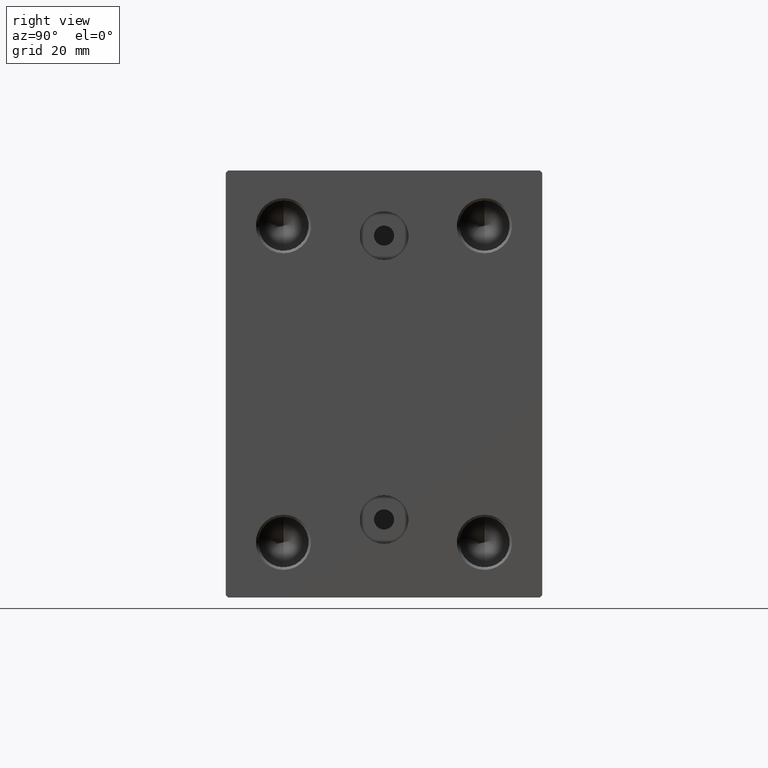
[diagram: clean part render]
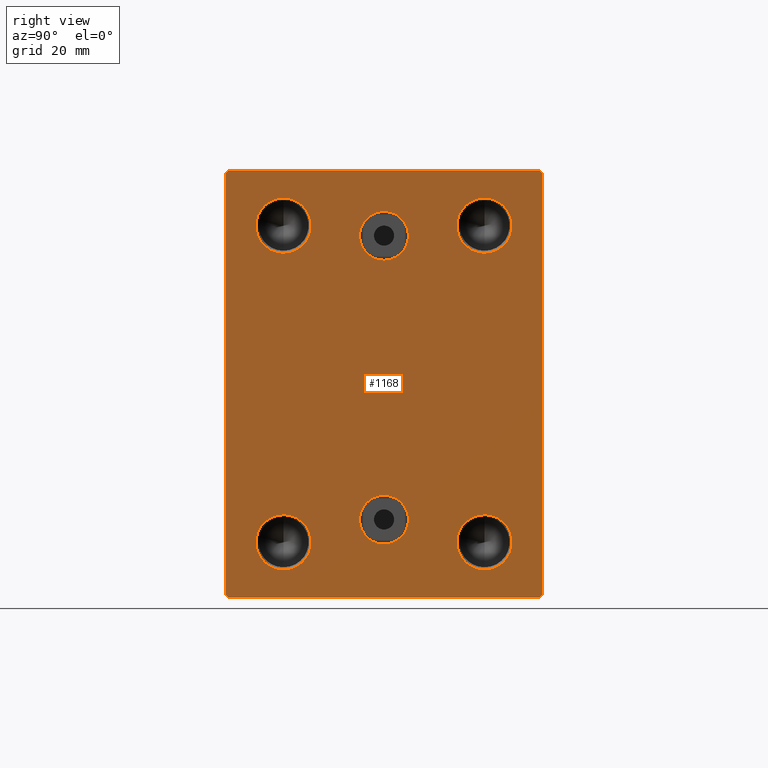
[diagram: same view with one face highlighted and labeled with its STEP entity id]
A machine part, right view. The second image highlights one B-rep face of the part: STEP entity #1168.
In plain terms, the highlighted planar face has unit normal (1, 0, 0).
Its self-contained STEP definition (entity closure, byte-faithful):
#137 = EDGE_CURVE ( 'NONE', #19427, #35619, #10495, .T. ) ;
#267 = DIRECTION ( 'NONE',  ( 1.000000000000000000, -0.000000000000000000, -0.000000000000000000 ) ) ;
#361 = EDGE_CURVE ( 'NONE', #19495, #12628, #22579, .T. ) ;
#696 = CIRCLE ( 'NONE', #38431, 5.500000000000005329 ) ;
#1168 = ADVANCED_FACE ( 'NONE', ( #35609, #8382, #42729, #41838, #29120, #17990, #34950 ), #35830, .T. ) ;
#1355 = VECTOR ( 'NONE', #8493, 1000.000000000000114 ) ;
#1652 = VERTEX_POINT ( 'NONE', #34414 ) ;
#2115 = CARTESIAN_POINT ( 'NONE',  ( 88.00000000000000000, 31.50000000000001421, -42.00000000000003553 ) ) ;
#2551 = CARTESIAN_POINT ( 'NONE',  ( 88.00000000000000000, -31.50000000000000000, -42.50000000000000711 ) ) ;
#2900 = CIRCLE ( 'NONE', #24941, 5.500000000000005329 ) ;
#2973 = CARTESIAN_POINT ( 'NONE',  ( 88.00000000000000000, -20.00000000000000355, -31.50000000000000000 ) ) ;
#3088 = VERTEX_POINT ( 'NONE', #26228 ) ;
#3159 = ORIENTED_EDGE ( 'NONE', *, *, #23619, .F. ) ;
#3489 = CIRCLE ( 'NONE', #10623, 5.500000000000005329 ) ;
#4285 = VERTEX_POINT ( 'NONE', #13578 ) ;
#4449 = LINE ( 'NONE', #8229, #16174 ) ;
#4480 = VERTEX_POINT ( 'NONE', #33838 ) ;
#4574 = CARTESIAN_POINT ( 'NONE',  ( 88.00000000000000000, -20.00000000000000355, 31.50000000000000000 ) ) ;
#5035 = CARTESIAN_POINT ( 'NONE',  ( 88.00000000000000000, 0.000000000000000000, 0.000000000000000000 ) ) ;
#5358 = LINE ( 'NONE', #39290, #1355 ) ;
#5769 = ORIENTED_EDGE ( 'NONE', *, *, #39551, .F. ) ;
#6415 = ORIENTED_EDGE ( 'NONE', *, *, #40078, .F. ) ;
#6997 = CARTESIAN_POINT ( 'NONE',  ( 88.00000000000000000, 3.306546357697854128E-15, -27.00000000000000355 ) ) ;
#7115 = CARTESIAN_POINT ( 'NONE',  ( 88.00000000000000000, -2.976515330312223011E-15, 34.35999999999999233 ) ) ;
#7119 = VECTOR ( 'NONE', #13458, 1000.000000000000000 ) ;
#7372 = CARTESIAN_POINT ( 'NONE',  ( 88.00000000000000000, -36.75000000000023448, -36.74999999999972999 ) ) ;
#7901 = VERTEX_POINT ( 'NONE', #2115 ) ;
#8025 = EDGE_CURVE ( 'NONE', #13191, #4285, #40485, .T. ) ;
#8229 = CARTESIAN_POINT ( 'NONE',  ( 88.00000000000000000, -31.50000000000000000, 42.49999999999998579 ) ) ;
#8273 = ORIENTED_EDGE ( 'NONE', *, *, #361, .F. ) ;
#8382 = FACE_BOUND ( 'NONE', #31406, .T. ) ;
#8493 = DIRECTION ( 'NONE',  ( -0.000000000000000000, -0.7071067811865474617, 0.7071067811865474617 ) ) ;
#9161 = DIRECTION ( 'NONE',  ( -0.000000000000000000, 0.7071067811865474617, 0.7071067811865474617 ) ) ;
#9405 = DIRECTION ( 'NONE',  ( 0.000000000000000000, 0.000000000000000000, -1.000000000000000000 ) ) ;
#9602 = CARTESIAN_POINT ( 'NONE',  ( 88.00000000000000000, 36.75000000000002842, -36.75000000000002842 ) ) ;
#9917 = DIRECTION ( 'NONE',  ( 1.000000000000000000, -0.000000000000000000, -0.000000000000000000 ) ) ;
#9932 = VECTOR ( 'NONE', #36878, 1000.000000000000114 ) ;
#10428 = ORIENTED_EDGE ( 'NONE', *, *, #38061, .T. ) ;
#10458 = CARTESIAN_POINT ( 'NONE',  ( 88.00000000000000000, -3.571693674697836683E-15, 24.63999999999999702 ) ) ;
#10495 = LINE ( 'NONE', #7372, #36843 ) ;
#10497 = EDGE_CURVE ( 'NONE', #3088, #18668, #5358, .T. ) ;
#10623 = AXIS2_PLACEMENT_3D ( 'NONE', #13910, #9917, #16830 ) ;
#11151 = DIRECTION ( 'NONE',  ( 0.000000000000000000, 0.000000000000000000, -1.000000000000000000 ) ) ;
#11264 = DIRECTION ( 'NONE',  ( 1.000000000000000000, -0.000000000000000000, -0.000000000000000000 ) ) ;
#11578 = VERTEX_POINT ( 'NONE', #41099 ) ;
#11876 = DIRECTION ( 'NONE',  ( 0.000000000000000000, 0.000000000000000000, -1.000000000000000000 ) ) ;
#12157 = VERTEX_POINT ( 'NONE', #22367 ) ;
#12628 = VERTEX_POINT ( 'NONE', #7115 ) ;
#12666 = CARTESIAN_POINT ( 'NONE',  ( 88.00000000000000000, 31.50000000000001421, -42.50000000000000711 ) ) ;
#13164 = ORIENTED_EDGE ( 'NONE', *, *, #29065, .F. ) ;
#13191 = VERTEX_POINT ( 'NONE', #31275 ) ;
#13252 = AXIS2_PLACEMENT_3D ( 'NONE', #5035, #14623, #35379 ) ;
#13292 = ORIENTED_EDGE ( 'NONE', *, *, #39058, .F. ) ;
#13297 = DIRECTION ( 'NONE',  ( 0.000000000000000000, 0.000000000000000000, -1.000000000000000000 ) ) ;
#13458 = DIRECTION ( 'NONE',  ( 0.000000000000000000, 1.000000000000000000, 0.000000000000000000 ) ) ;
#13578 = CARTESIAN_POINT ( 'NONE',  ( 88.00000000000000000, 3.306546357697854128E-15, -31.85999999999999943 ) ) ;
#13628 = ORIENTED_EDGE ( 'NONE', *, *, #8025, .F. ) ;
#13800 = CARTESIAN_POINT ( 'NONE',  ( 88.00000000000000000, -20.00000000000000355, 31.50000000000000000 ) ) ;
#13910 = CARTESIAN_POINT ( 'NONE',  ( 88.00000000000000000, 19.99999999999999645, 31.50000000000000000 ) ) ;
#14623 = DIRECTION ( 'NONE',  ( 1.000000000000000000, 0.000000000000000000, 0.000000000000000000 ) ) ;
#14767 = CARTESIAN_POINT ( 'NONE',  ( 88.00000000000000000, 19.99999999999999645, -31.50000000000000000 ) ) ;
#14933 = DIRECTION ( 'NONE',  ( 1.000000000000000000, -0.000000000000000000, -0.000000000000000000 ) ) ;
#15173 = CARTESIAN_POINT ( 'NONE',  ( 88.00000000000000000, -31.50000000000000000, -42.00000000000002842 ) ) ;
#15437 = DIRECTION ( 'NONE',  ( 1.000000000000000000, -0.000000000000000000, -0.000000000000000000 ) ) ;
#15476 = ORIENTED_EDGE ( 'NONE', *, *, #42716, .F. ) ;
#15662 = DIRECTION ( 'NONE',  ( 1.000000000000000000, 0.000000000000000000, -0.000000000000000000 ) ) ;
#16108 = DIRECTION ( 'NONE',  ( 0.000000000000000000, 0.000000000000000000, 1.000000000000000000 ) ) ;
#16174 = VECTOR ( 'NONE', #17846, 1000.000000000000000 ) ;
#16430 = AXIS2_PLACEMENT_3D ( 'NONE', #28985, #14933, #11151 ) ;
#16575 = CARTESIAN_POINT ( 'NONE',  ( 88.00000000000000000, 19.99999999999999645, 31.50000000000000000 ) ) ;
#16717 = DIRECTION ( 'NONE',  ( 0.000000000000000000, 0.000000000000000000, -1.000000000000000000 ) ) ;
#16728 = DIRECTION ( 'NONE',  ( 0.000000000000000000, 0.000000000000000000, -1.000000000000000000 ) ) ;
#16746 = VERTEX_POINT ( 'NONE', #33668 ) ;
#16830 = DIRECTION ( 'NONE',  ( 0.000000000000000000, 0.000000000000000000, -1.000000000000000000 ) ) ;
#17121 = ORIENTED_EDGE ( 'NONE', *, *, #32323, .F. ) ;
#17826 = AXIS2_PLACEMENT_3D ( 'NONE', #25921, #15662, #16108 ) ;
#17846 = DIRECTION ( 'NONE',  ( 0.000000000000000000, 0.000000000000000000, -1.000000000000000000 ) ) ;
#17990 = FACE_BOUND ( 'NONE', #20998, .T. ) ;
#18163 = EDGE_CURVE ( 'NONE', #4285, #13191, #28515, .T. ) ;
#18668 = VERTEX_POINT ( 'NONE', #39274 ) ;
#18999 = ORIENTED_EDGE ( 'NONE', *, *, #18163, .F. ) ;
#19054 = ORIENTED_EDGE ( 'NONE', *, *, #10497, .T. ) ;
#19427 = VERTEX_POINT ( 'NONE', #15173 ) ;
#19495 = VERTEX_POINT ( 'NONE', #10458 ) ;
#19560 = ORIENTED_EDGE ( 'NONE', *, *, #34250, .F. ) ;
#19689 = CARTESIAN_POINT ( 'NONE',  ( 88.00000000000000000, 19.99999999999999645, 25.99999999999999289 ) ) ;
#20998 = EDGE_LOOP ( 'NONE', ( #5769, #19560 ) ) ;
#21117 = EDGE_CURVE ( 'NONE', #11578, #7901, #43286, .T. ) ;
#21191 = DIRECTION ( 'NONE',  ( 0.000000000000000000, -1.000000000000000000, -1.101411730778925171E-16 ) ) ;
#21236 = AXIS2_PLACEMENT_3D ( 'NONE', #6997, #34886, #24825 ) ;
#21833 = AXIS2_PLACEMENT_3D ( 'NONE', #23351, #43856, #13297 ) ;
#22367 = CARTESIAN_POINT ( 'NONE',  ( 88.00000000000000000, -31.00000000000002842, 42.49999999999998579 ) ) ;
#22408 = ORIENTED_EDGE ( 'NONE', *, *, #39093, .T. ) ;
#22579 = CIRCLE ( 'NONE', #21833, 4.859999999999999432 ) ;
#22664 = AXIS2_PLACEMENT_3D ( 'NONE', #2973, #43779, #40441 ) ;
#22787 = CARTESIAN_POINT ( 'NONE',  ( 88.00000000000000000, 19.99999999999999645, -31.50000000000000000 ) ) ;
#22933 = AXIS2_PLACEMENT_3D ( 'NONE', #44157, #26763, #16728 ) ;
#23351 = CARTESIAN_POINT ( 'NONE',  ( 88.00000000000000000, -3.571693674697836683E-15, 29.50000000000000000 ) ) ;
#23619 = EDGE_CURVE ( 'NONE', #16746, #1652, #23742, .T. ) ;
#23635 = VECTOR ( 'NONE', #9161, 1000.000000000000114 ) ;
#23742 = CIRCLE ( 'NONE', #29440, 5.500000000000005329 ) ;
#24125 = LINE ( 'NONE', #40434, #9932 ) ;
#24267 = VERTEX_POINT ( 'NONE', #33896 ) ;
#24825 = DIRECTION ( 'NONE',  ( 0.000000000000000000, 0.000000000000000000, 1.000000000000000000 ) ) ;
#24874 = DIRECTION ( 'NONE',  ( 0.000000000000000000, 0.000000000000000000, -1.000000000000000000 ) ) ;
#24939 = CARTESIAN_POINT ( 'NONE',  ( 88.00000000000000000, 19.99999999999999645, -37.00000000000000711 ) ) ;
#24941 = AXIS2_PLACEMENT_3D ( 'NONE', #14767, #15437, #11876 ) ;
#25069 = EDGE_LOOP ( 'NONE', ( #8273, #15476 ) ) ;
#25339 = ORIENTED_EDGE ( 'NONE', *, *, #32718, .F. ) ;
#25344 = ORIENTED_EDGE ( 'NONE', *, *, #21117, .T. ) ;
#25525 = CIRCLE ( 'NONE', #22664, 5.500000000000005329 ) ;
#25606 = DIRECTION ( 'NONE',  ( 0.000000000000000000, -1.632680918566406547E-16, 1.000000000000000000 ) ) ;
#25718 = CIRCLE ( 'NONE', #39263, 5.500000000000005329 ) ;
#25762 = EDGE_CURVE ( 'NONE', #29194, #19427, #4449, .T. ) ;
#25921 = CARTESIAN_POINT ( 'NONE',  ( 88.00000000000000000, 3.306546357697854128E-15, -27.00000000000000355 ) ) ;
#26228 = CARTESIAN_POINT ( 'NONE',  ( 88.00000000000000000, 31.50000000000000000, 42.00000000000002132 ) ) ;
#26763 = DIRECTION ( 'NONE',  ( 1.000000000000000000, 0.000000000000000000, 0.000000000000000000 ) ) ;
#27084 = VECTOR ( 'NONE', #21191, 1000.000000000000000 ) ;
#27161 = ORIENTED_EDGE ( 'NONE', *, *, #25762, .T. ) ;
#27262 = CARTESIAN_POINT ( 'NONE',  ( 88.00000000000000000, -31.50000000000000000, 42.00000000000001421 ) ) ;
#28281 = ORIENTED_EDGE ( 'NONE', *, *, #42973, .T. ) ;
#28480 = CIRCLE ( 'NONE', #32061, 5.500000000000005329 ) ;
#28515 = CIRCLE ( 'NONE', #17826, 4.859999999999995879 ) ;
#28658 = CARTESIAN_POINT ( 'NONE',  ( 88.00000000000000000, 19.99999999999999645, 37.00000000000000711 ) ) ;
#28985 = CARTESIAN_POINT ( 'NONE',  ( 88.00000000000000000, -20.00000000000000355, -31.50000000000000000 ) ) ;
#29065 = EDGE_CURVE ( 'NONE', #4480, #24267, #25525, .T. ) ;
#29120 = FACE_BOUND ( 'NONE', #41094, .T. ) ;
#29194 = VERTEX_POINT ( 'NONE', #27262 ) ;
#29440 = AXIS2_PLACEMENT_3D ( 'NONE', #4574, #11264, #24874 ) ;
#30185 = DIRECTION ( 'NONE',  ( 0.000000000000000000, 0.000000000000000000, -1.000000000000000000 ) ) ;
#31275 = CARTESIAN_POINT ( 'NONE',  ( 88.00000000000000000, 3.901724702083467405E-15, -22.14000000000000767 ) ) ;
#31406 = EDGE_LOOP ( 'NONE', ( #18999, #13628 ) ) ;
#31435 = VERTEX_POINT ( 'NONE', #28658 ) ;
#32061 = AXIS2_PLACEMENT_3D ( 'NONE', #22787, #36404, #9405 ) ;
#32323 = EDGE_CURVE ( 'NONE', #31435, #41471, #3489, .T. ) ;
#32509 = EDGE_LOOP ( 'NONE', ( #6415, #3159 ) ) ;
#32632 = EDGE_CURVE ( 'NONE', #12157, #29194, #24125, .T. ) ;
#32718 = EDGE_CURVE ( 'NONE', #41471, #31435, #696, .T. ) ;
#32759 = LINE ( 'NONE', #12666, #35059 ) ;
#33130 = LINE ( 'NONE', #2551, #7119 ) ;
#33441 = CARTESIAN_POINT ( 'NONE',  ( 88.00000000000000000, -31.00000000000002842, -42.50000000000000711 ) ) ;
#33668 = CARTESIAN_POINT ( 'NONE',  ( 88.00000000000000000, -20.00000000000000355, 25.99999999999999289 ) ) ;
#33838 = CARTESIAN_POINT ( 'NONE',  ( 88.00000000000000000, -20.00000000000000355, -25.99999999999999289 ) ) ;
#33895 = DIRECTION ( 'NONE',  ( 1.000000000000000000, -0.000000000000000000, -0.000000000000000000 ) ) ;
#33896 = CARTESIAN_POINT ( 'NONE',  ( 88.00000000000000000, -20.00000000000000355, -37.00000000000000711 ) ) ;
#34207 = EDGE_LOOP ( 'NONE', ( #22408, #43636, #27161, #39118, #10428, #25344, #28281, #19054 ) ) ;
#34250 = EDGE_CURVE ( 'NONE', #41031, #35944, #28480, .T. ) ;
#34414 = CARTESIAN_POINT ( 'NONE',  ( 88.00000000000000000, -20.00000000000000355, 37.00000000000000711 ) ) ;
#34886 = DIRECTION ( 'NONE',  ( 1.000000000000000000, 0.000000000000000000, -0.000000000000000000 ) ) ;
#34950 = FACE_OUTER_BOUND ( 'NONE', #34207, .T. ) ;
#35023 = CIRCLE ( 'NONE', #22933, 4.859999999999999432 ) ;
#35059 = VECTOR ( 'NONE', #25606, 1000.000000000000000 ) ;
#35286 = CARTESIAN_POINT ( 'NONE',  ( 88.00000000000000000, 19.99999999999999645, -25.99999999999999289 ) ) ;
#35379 = DIRECTION ( 'NONE',  ( 0.000000000000000000, 0.000000000000000000, -1.000000000000000000 ) ) ;
#35609 = FACE_BOUND ( 'NONE', #25069, .T. ) ;
#35619 = VERTEX_POINT ( 'NONE', #33441 ) ;
#35830 = PLANE ( 'NONE',  #13252 ) ;
#35944 = VERTEX_POINT ( 'NONE', #35286 ) ;
#36387 = EDGE_LOOP ( 'NONE', ( #17121, #25339 ) ) ;
#36404 = DIRECTION ( 'NONE',  ( 1.000000000000000000, -0.000000000000000000, -0.000000000000000000 ) ) ;
#36843 = VECTOR ( 'NONE', #37724, 1000.000000000000000 ) ;
#36878 = DIRECTION ( 'NONE',  ( 0.000000000000000000, -0.7071067811865474617, -0.7071067811865474617 ) ) ;
#37724 = DIRECTION ( 'NONE',  ( -0.000000000000000000, 0.7071067811865426878, -0.7071067811865524577 ) ) ;
#38061 = EDGE_CURVE ( 'NONE', #35619, #11578, #33130, .T. ) ;
#38379 = LINE ( 'NONE', #38824, #27084 ) ;
#38431 = AXIS2_PLACEMENT_3D ( 'NONE', #16575, #267, #30185 ) ;
#38824 = CARTESIAN_POINT ( 'NONE',  ( 88.00000000000000000, 31.50000000000000000, 42.49999999999999289 ) ) ;
#39058 = EDGE_CURVE ( 'NONE', #24267, #4480, #42749, .T. ) ;
#39093 = EDGE_CURVE ( 'NONE', #18668, #12157, #38379, .T. ) ;
#39118 = ORIENTED_EDGE ( 'NONE', *, *, #137, .T. ) ;
#39263 = AXIS2_PLACEMENT_3D ( 'NONE', #13800, #33895, #16717 ) ;
#39274 = CARTESIAN_POINT ( 'NONE',  ( 88.00000000000000000, 31.00000000000002842, 42.49999999999999289 ) ) ;
#39290 = CARTESIAN_POINT ( 'NONE',  ( 88.00000000000000000, 36.75000000000001421, 36.75000000000001421 ) ) ;
#39551 = EDGE_CURVE ( 'NONE', #35944, #41031, #2900, .T. ) ;
#40078 = EDGE_CURVE ( 'NONE', #1652, #16746, #25718, .T. ) ;
#40434 = CARTESIAN_POINT ( 'NONE',  ( 88.00000000000000000, -36.75000000000001421, 36.75000000000001421 ) ) ;
#40441 = DIRECTION ( 'NONE',  ( 0.000000000000000000, 0.000000000000000000, -1.000000000000000000 ) ) ;
#40485 = CIRCLE ( 'NONE', #21236, 4.859999999999995879 ) ;
#41031 = VERTEX_POINT ( 'NONE', #24939 ) ;
#41094 = EDGE_LOOP ( 'NONE', ( #13164, #13292 ) ) ;
#41099 = CARTESIAN_POINT ( 'NONE',  ( 88.00000000000000000, 31.00000000000004263, -42.50000000000000711 ) ) ;
#41471 = VERTEX_POINT ( 'NONE', #19689 ) ;
#41838 = FACE_BOUND ( 'NONE', #32509, .T. ) ;
#42716 = EDGE_CURVE ( 'NONE', #12628, #19495, #35023, .T. ) ;
#42729 = FACE_BOUND ( 'NONE', #36387, .T. ) ;
#42749 = CIRCLE ( 'NONE', #16430, 5.500000000000005329 ) ;
#42973 = EDGE_CURVE ( 'NONE', #7901, #3088, #32759, .T. ) ;
#43286 = LINE ( 'NONE', #9602, #23635 ) ;
#43636 = ORIENTED_EDGE ( 'NONE', *, *, #32632, .T. ) ;
#43779 = DIRECTION ( 'NONE',  ( 1.000000000000000000, -0.000000000000000000, -0.000000000000000000 ) ) ;
#43856 = DIRECTION ( 'NONE',  ( 1.000000000000000000, 0.000000000000000000, 0.000000000000000000 ) ) ;
#44157 = CARTESIAN_POINT ( 'NONE',  ( 88.00000000000000000, -3.571693674697836683E-15, 29.50000000000000000 ) ) ;